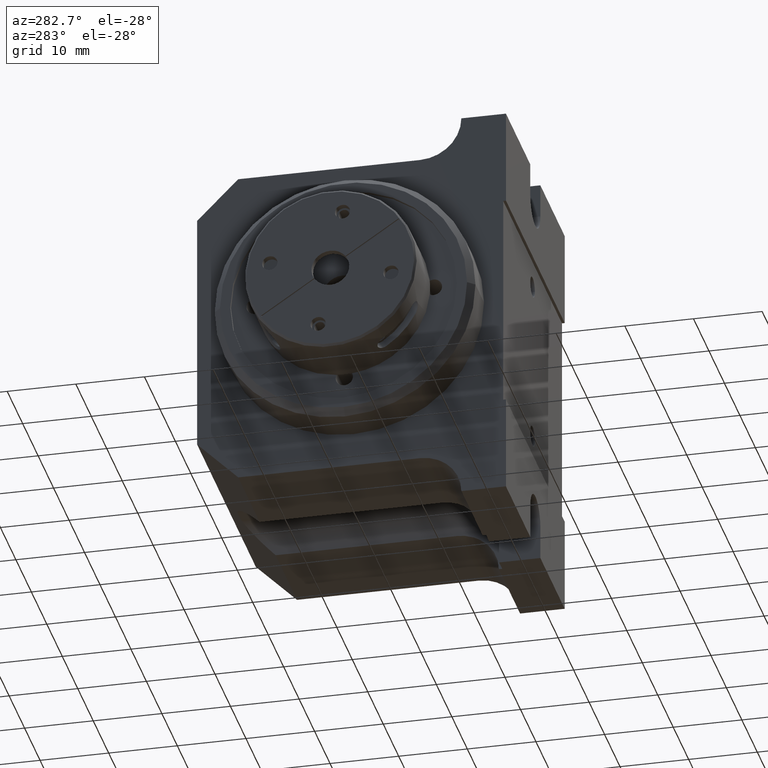
[diagram: clean part render]
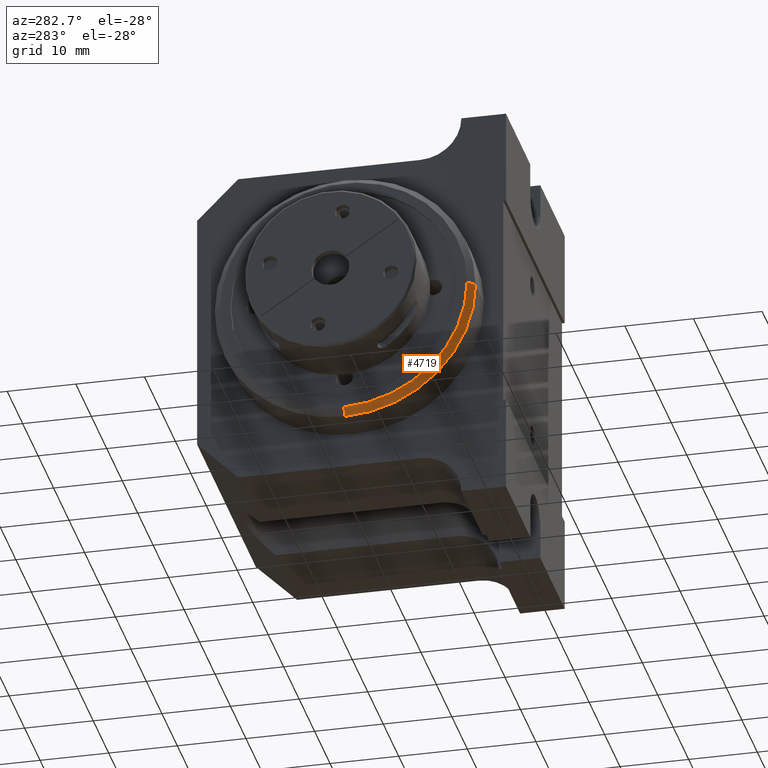
[diagram: same view with one face highlighted and labeled with its STEP entity id]
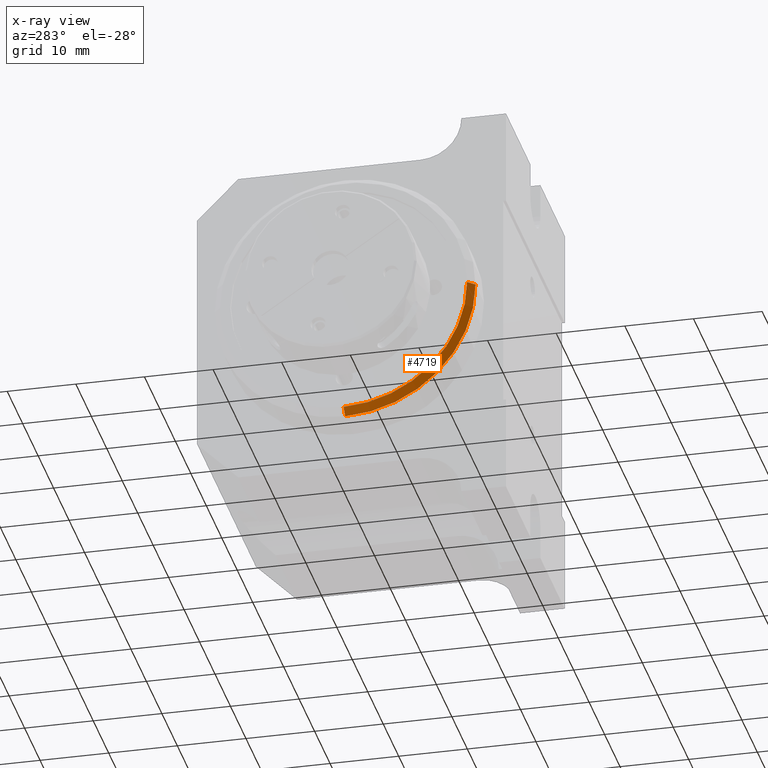
[diagram: x-ray of the same camera — body ghosted, the highlighted face saturated]
A machine part, auxiliary view. The second image highlights one B-rep face of the part: STEP entity #4719.
The next image is the same camera in x-ray: the body ghosted, the highlighted face saturated — about 0% of this face is hidden behind the body in this view.
In plain terms, the highlighted conical surface has half-angle 45 deg.
Its self-contained STEP definition (entity closure, byte-faithful):
#15 = VERTEX_POINT ( 'NONE', #4970 ) ;
#129 = DIRECTION ( 'NONE',  ( 0.000000000000000000, -0.0003771415654783671478, -0.9999999288821174170 ) ) ;
#177 = VERTEX_POINT ( 'NONE', #10862 ) ;
#277 = FACE_OUTER_BOUND ( 'NONE', #8384, .T. ) ;
#543 = DIRECTION ( 'NONE',  ( 0.000000000000000000, 0.9999999288821173060, -0.0003771415654790013518 ) ) ;
#605 = CONICAL_SURFACE ( 'NONE', #9364, 18.50000316681999379, 0.7853983345889673506 ) ;
#788 = EDGE_CURVE ( 'NONE', #177, #15, #4441, .T. ) ;
#1444 = ORIENTED_EDGE ( 'NONE', *, *, #788, .F. ) ;
#1675 = CARTESIAN_POINT ( 'NONE',  ( 1.000015562645000022, 20.00319154790590659, -15.47224627364132665 ) ) ;
#1728 = DIRECTION ( 'NONE',  ( 0.7071066601358532155, -0.0002666794040702614348, -0.7071068519492753612 ) ) ;
#2238 = LINE ( 'NONE', #12710, #6373 ) ;
#2879 = VERTEX_POINT ( 'NONE', #5793 ) ;
#2962 = DIRECTION ( 'NONE',  ( -1.000000000000000000, 0.000000000000000000, 0.000000000000000000 ) ) ;
#4441 = CIRCLE ( 'NONE', #8103, 18.00000616289999300 ) ;
#4557 = DIRECTION ( 'NONE',  ( -1.000000000000000000, 0.000000000000000000, 0.000000000000000000 ) ) ;
#4638 = CARTESIAN_POINT ( 'NONE',  ( 2.206792700221000021E-05, 20.01035723764999830, 3.527752375123000217 ) ) ;
#4719 = ADVANCED_FACE ( 'NONE', ( #277 ), #605, .T. ) ;
#4946 = DIRECTION ( 'NONE',  ( 0.000000000000000000, 0.9999999288821173060, -0.0003771415654785082025 ) ) ;
#4970 = CARTESIAN_POINT ( 'NONE',  ( 2.206792699622000343E-05, 2.010352354875000191, 3.534540925626000085 ) ) ;
#5665 = ORIENTED_EDGE ( 'NONE', *, *, #10705, .T. ) ;
#5793 = CARTESIAN_POINT ( 'NONE',  ( 1.000015562645000022, 1.010358588893000231, 3.534918064866999998 ) ) ;
#5809 = ORIENTED_EDGE ( 'NONE', *, *, #8141, .F. ) ;
#5944 = CARTESIAN_POINT ( 'NONE',  ( 0.5000189006512999468, 20.01035723764999830, 3.527752375123000217 ) ) ;
#6373 = VECTOR ( 'NONE', #1728, 1000.000000000000114 ) ;
#6412 = EDGE_CURVE ( 'NONE', #177, #6965, #2238, .T. ) ;
#6965 = VERTEX_POINT ( 'NONE', #1675 ) ;
#7522 = VECTOR ( 'NONE', #12581, 999.9999999999998863 ) ;
#7620 = CARTESIAN_POINT ( 'NONE',  ( 2.001347666355000014E-05, 2.010356463623999890, 3.534540919784999957 ) ) ;
#7629 = LINE ( 'NONE', #7620, #7522 ) ;
#8103 = AXIS2_PLACEMENT_3D ( 'NONE', #4638, #4557, #543 ) ;
#8141 = EDGE_CURVE ( 'NONE', #15, #2879, #7629, .T. ) ;
#8257 = CARTESIAN_POINT ( 'NONE',  ( 1.000015562645000022, 20.01035723764999830, 3.527752375123000217 ) ) ;
#8384 = EDGE_LOOP ( 'NONE', ( #1444, #8918, #5665, #5809 ) ) ;
#8583 = DIRECTION ( 'NONE',  ( 1.000000000000000000, 0.000000000000000000, 0.000000000000000000 ) ) ;
#8918 = ORIENTED_EDGE ( 'NONE', *, *, #6412, .T. ) ;
#9364 = AXIS2_PLACEMENT_3D ( 'NONE', #5944, #8583, #129 ) ;
#9855 = AXIS2_PLACEMENT_3D ( 'NONE', #8257, #2962, #4946 ) ;
#10245 = CIRCLE ( 'NONE', #9855, 18.99999999999998934 ) ;
#10705 = EDGE_CURVE ( 'NONE', #6965, #2879, #10245, .T. ) ;
#10862 = CARTESIAN_POINT ( 'NONE',  ( 2.206792700221000021E-05, 20.00356868714710146, -14.47225250765990445 ) ) ;
#12581 = DIRECTION ( 'NONE',  ( 0.7071070838134057013, -0.7071064282714057958, 0.0002666798764942018970 ) ) ;
#12710 = CARTESIAN_POINT ( 'NONE',  ( 0.5000189006512999468, 20.00338011749430933, -14.97224947601593925 ) ) ;